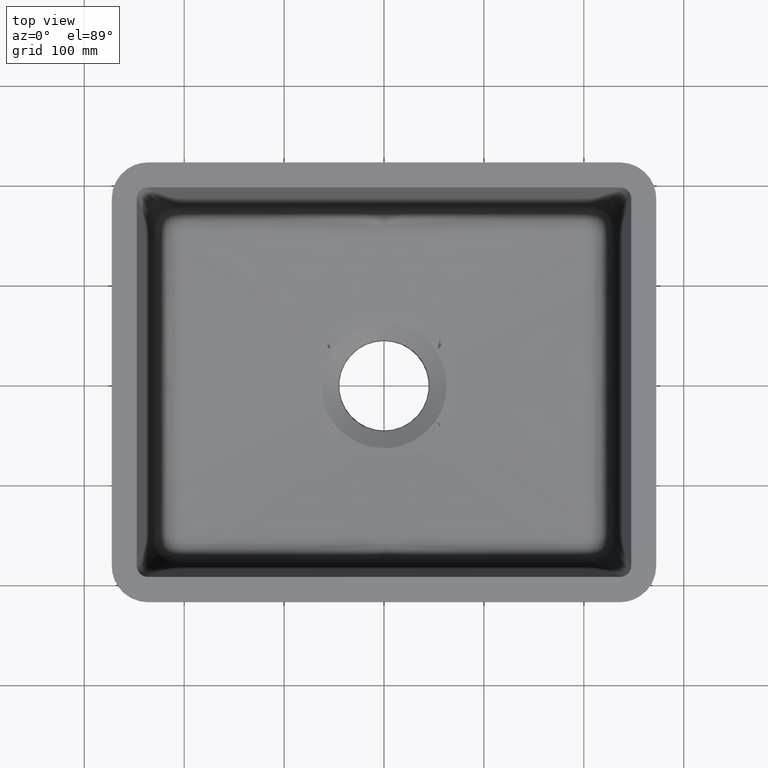
[diagram: clean part render]
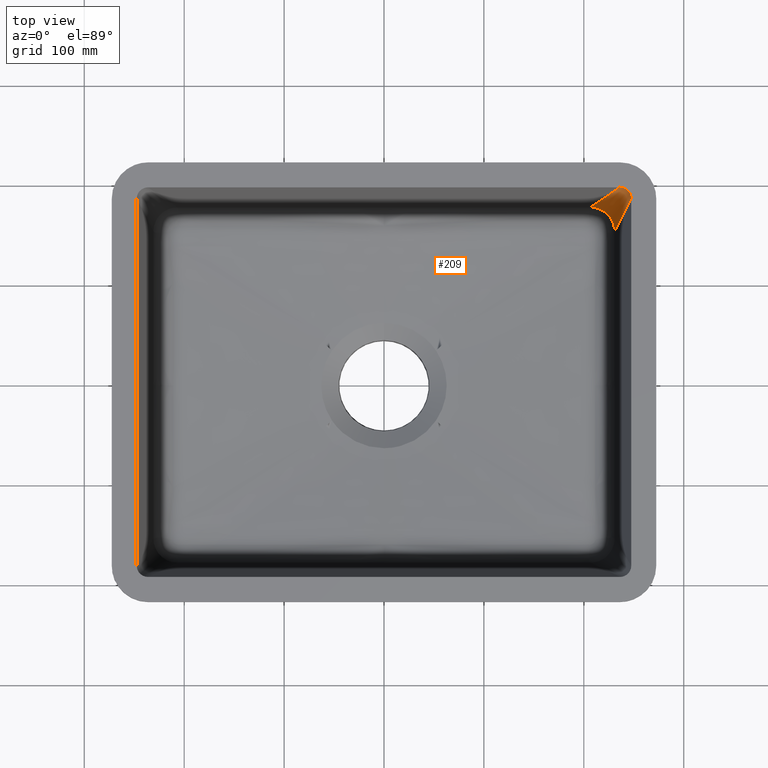
[diagram: same view with one face highlighted and labeled with its STEP entity id]
A machine part, top view. The second image highlights one B-rep face of the part: STEP entity #209.
In plain terms, the highlighted face is a freeform B-spline surface patch.
Its self-contained STEP definition (entity closure, byte-faithful):
#148=B_SPLINE_SURFACE_WITH_KNOTS('',3,3,((#15884,#15885,#15886,#15887,#15888,
#15889,#15890,#15891,#15892,#15893,#15894),(#15895,#15896,#15897,#15898,
#15899,#15900,#15901,#15902,#15903,#15904,#15905),(#15906,#15907,#15908,
#15909,#15910,#15911,#15912,#15913,#15914,#15915,#15916),(#15917,#15918,
#15919,#15920,#15921,#15922,#15923,#15924,#15925,#15926,#15927)),
 .UNSPECIFIED.,.F.,.F.,.F.,(4,4),(4,1,1,1,1,1,1,1,4),(0.,1.),(0.,0.125,
0.25,0.375,0.5,0.625,0.75,0.875,1.),.UNSPECIFIED.);
#209=ADVANCED_FACE('',(#280),#148,.T.);
#280=FACE_OUTER_BOUND('',#350,.T.);
#350=EDGE_LOOP('',(#597,#598,#599,#600));
#597=ORIENTED_EDGE('',*,*,#993,.T.);
#598=ORIENTED_EDGE('',*,*,#978,.T.);
#599=ORIENTED_EDGE('',*,*,#980,.T.);
#600=ORIENTED_EDGE('',*,*,#994,.F.);
#819=VERTEX_POINT('',#13735);
#830=VERTEX_POINT('',#15345);
#831=VERTEX_POINT('',#15629);
#838=VERTEX_POINT('',#15863);
#978=EDGE_CURVE('',#830,#819,#1155,.T.);
#980=EDGE_CURVE('',#819,#831,#1156,.T.);
#993=EDGE_CURVE('',#838,#830,#1166,.T.);
#994=EDGE_CURVE('',#838,#831,#1167,.T.);
#1155=B_SPLINE_CURVE_WITH_KNOTS('',3,(#15496,#15497,#15498,#15499,#15500,
#15501,#15502,#15503,#15504,#15505,#15506),.UNSPECIFIED.,.F.,.F.,(4,1,1,
1,1,1,1,1,4),(0.,0.125,0.25,0.375,0.5,0.625,0.75,0.875,1.),
 .UNSPECIFIED.);
#1156=B_SPLINE_CURVE_WITH_KNOTS('',3,(#15631,#15632,#15633,#15634,#15635,
#15636,#15637,#15638),.UNSPECIFIED.,.F.,.F.,(4,2,2,4),(0.,0.545454545454545,
0.818181818181818,1.),.UNSPECIFIED.);
#1166=B_SPLINE_CURVE_WITH_KNOTS('',3,(#15864,#15865,#15866,#15867,#15868,
#15869,#15870,#15871),.UNSPECIFIED.,.F.,.F.,(4,2,2,4),(0.,0.181818181818182,
0.454545454545455,1.),.UNSPECIFIED.);
#1167=B_SPLINE_CURVE_WITH_KNOTS('',3,(#15873,#15874,#15875,#15876,#15877,
#15878,#15879,#15880,#15881,#15882,#15883),.UNSPECIFIED.,.F.,.F.,(4,1,1,
1,1,1,1,1,4),(0.,0.125,0.25,0.375,0.5,0.625,0.75,0.875,1.),
 .UNSPECIFIED.);
#13735=CARTESIAN_POINT('',(230.884217562772,153.719689496109,-164.708937441336));
#15345=CARTESIAN_POINT('',(206.71433134018,177.920632429342,-164.708937441336));
#15496=CARTESIAN_POINT('',(206.71433134018,177.920632429342,-164.708937441336));
#15497=CARTESIAN_POINT('',(208.297481339096,177.920632429342,-164.708937441336));
#15498=CARTESIAN_POINT('',(211.464245065033,177.613964561811,-164.708937441336));
#15499=CARTESIAN_POINT('',(216.031484255933,176.227713989345,-164.708937441336));
#15500=CARTESIAN_POINT('',(220.236203761262,173.969889042836,-164.708937441336));
#15501=CARTESIAN_POINT('',(223.920045554199,170.936276082644,-164.708937441336));
#15502=CARTESIAN_POINT('',(226.94632060297,167.246456862881,-164.708937441336));
#15503=CARTESIAN_POINT('',(229.197157059585,163.038121042039,-164.708937441336));
#15504=CARTESIAN_POINT('',(230.578584045717,158.469592204631,-164.708937441336));
#15505=CARTESIAN_POINT('',(230.884217562772,155.302839490647,-164.708937441336));
#15506=CARTESIAN_POINT('',(230.884217562772,153.719689496109,-164.708937441336));
#15629=CARTESIAN_POINT('',(247.50000000003,183.726314810026,-2.79941000935757E-12));
#15631=CARTESIAN_POINT('',(190.743294088139,81.2287517382133,-562.617906121354));
#15632=CARTESIAN_POINT('',(203.531729561835,104.323528830982,-435.84869580199));
#15633=CARTESIAN_POINT('',(216.320165035531,127.418305923751,-309.079485482626));
#15634=CARTESIAN_POINT('',(235.502818246075,162.060471562905,-118.92567000358));
#15635=CARTESIAN_POINT('',(241.897035982923,173.607860109289,-55.5410648438978));
#15636=CARTESIAN_POINT('',(252.554065544336,192.853507686596,50.0999437555723));
#15637=CARTESIAN_POINT('',(256.816877368901,200.551766717519,92.3563471953603));
#15638=CARTESIAN_POINT('',(261.079689193466,208.250025748442,134.612750635148));
#15863=CARTESIAN_POINT('',(236.250864642863,194.999999999892,-2.21700204490934E-12));
#15864=CARTESIAN_POINT('',(260.390380408466,208.958566447442,134.612750635148));
#15865=CARTESIAN_POINT('',(252.811068060076,204.575863162545,92.3471106344686));
#15866=CARTESIAN_POINT('',(245.231755711686,200.193159877647,50.0814706337888));
#15867=CARTESIAN_POINT('',(226.283474840712,189.236401665404,-55.5826293679107));
#15868=CARTESIAN_POINT('',(214.914506318127,182.662346738058,-118.98108936893));
#15869=CARTESIAN_POINT('',(180.807600750373,162.940181956019,-309.176469371989));
#15870=CARTESIAN_POINT('',(158.069663705203,149.792072101327,-435.973389374029));
#15871=CARTESIAN_POINT('',(135.331726660033,136.643962246634,-562.770309376068));
#15873=CARTESIAN_POINT('',(236.250864642863,194.999999999892,-1.91328434577069E-14));
#15874=CARTESIAN_POINT('',(236.988026141915,194.999999999892,-2.51183390803541E-14));
#15875=CARTESIAN_POINT('',(238.462542168365,194.854293399741,-3.49461683317661E-14));
#15876=CARTESIAN_POINT('',(240.589185835221,194.21165329397,-4.48586935912335E-14));
#15877=CARTESIAN_POINT('',(242.5449896714,193.15797257756,-5.15422675970472E-14));
#15878=CARTESIAN_POINT('',(244.260964805891,191.744982735131,-5.65971577132043E-14));
#15879=CARTESIAN_POINT('',(245.668122367682,190.024415251305,-6.16236313037017E-14));
#15880=CARTESIAN_POINT('',(246.716270609933,188.065631558189,-6.82219557325362E-14));
#15881=CARTESIAN_POINT('',(247.355217785803,185.937993087888,-7.79923983637049E-14));
#15882=CARTESIAN_POINT('',(247.50000000003,184.463476305809,-8.76876171620381E-14));
#15883=CARTESIAN_POINT('',(247.50000000003,183.726314810027,-9.3597335382926E-14));
#15884=CARTESIAN_POINT('',(236.250864642863,194.999999999892,-1.91328434577069E-14));
#15885=CARTESIAN_POINT('',(236.988026141915,194.999999999892,-2.51183390803541E-14));
#15886=CARTESIAN_POINT('',(238.462542168365,194.854293399741,-3.49461683317661E-14));
#15887=CARTESIAN_POINT('',(240.589185835221,194.21165329397,-4.48586935912335E-14));
#15888=CARTESIAN_POINT('',(242.5449896714,193.15797257756,-5.15422675970472E-14));
#15889=CARTESIAN_POINT('',(244.260964805891,191.744982735131,-5.65971577132043E-14));
#15890=CARTESIAN_POINT('',(245.668122367682,190.024415251305,-6.16236313037017E-14));
#15891=CARTESIAN_POINT('',(246.716270609933,188.065631558189,-6.82219557325362E-14));
#15892=CARTESIAN_POINT('',(247.355217785803,185.937993087888,-7.79923983637049E-14));
#15893=CARTESIAN_POINT('',(247.50000000003,184.463476305809,-8.76876171620381E-14));
#15894=CARTESIAN_POINT('',(247.50000000003,183.726314810027,-9.3597335382926E-14));
#15895=CARTESIAN_POINT('',(226.405353541968,189.306877476375,-54.9029791471149));
#15896=CARTESIAN_POINT('',(227.424512626059,189.306877476375,-54.9029791471151));
#15897=CARTESIAN_POINT('',(229.4631056825,189.107518266139,-54.9029791471156));
#15898=CARTESIAN_POINT('',(232.403281499014,188.217008201892,-54.9029791471163));
#15899=CARTESIAN_POINT('',(235.108724205699,186.761947709349,-54.902979147117));
#15900=CARTESIAN_POINT('',(237.480658369741,184.808747446286,-54.9029791471177));
#15901=CARTESIAN_POINT('',(239.427524427114,182.431759356019,-54.9029791471184));
#15902=CARTESIAN_POINT('',(240.87656733482,179.723124557681,-54.9029791471191));
#15903=CARTESIAN_POINT('',(241.763007612422,176.781855547211,-54.9029791471198));
#15904=CARTESIAN_POINT('',(241.961405854277,174.743265452583,-54.9029791471203));
#15905=CARTESIAN_POINT('',(241.961405854277,173.724106372053,-54.9029791471205));
#15906=CARTESIAN_POINT('',(216.559842441072,183.613754952857,-109.80595829424));
#15907=CARTESIAN_POINT('',(217.8609991102,183.613754952857,-109.80595829424));
#15908=CARTESIAN_POINT('',(220.463669196634,183.360743132536,-109.805958294241));
#15909=CARTESIAN_POINT('',(224.217377162807,182.222363109812,-109.805958294243));
#15910=CARTESIAN_POINT('',(227.672458739997,180.365922841137,-109.805958294244));
#15911=CARTESIAN_POINT('',(230.700351933589,177.87251215744,-109.805958294246));
#15912=CARTESIAN_POINT('',(233.186926486545,174.83910346073,-109.805958294247));
#15913=CARTESIAN_POINT('',(235.036864059705,171.380617557171,-109.805958294248));
#15914=CARTESIAN_POINT('',(236.17079743904,167.625718006532,-109.80595829425));
#15915=CARTESIAN_POINT('',(236.422811708522,165.023054599354,-109.805958294251));
#15916=CARTESIAN_POINT('',(236.422811708522,163.721897934077,-109.805958294251));
#15917=CARTESIAN_POINT('',(206.71433134018,177.920632429342,-164.708937441336));
#15918=CARTESIAN_POINT('',(208.297485594347,177.920632429342,-164.708937441336));
#15919=CARTESIAN_POINT('',(211.464232710772,177.613967998936,-164.708937441336));
#15920=CARTESIAN_POINT('',(216.031472826603,176.227718017737,-164.708937441336));
#15921=CARTESIAN_POINT('',(220.2361932743,173.969897972929,-164.708937441336));
#15922=CARTESIAN_POINT('',(223.920045497441,170.936276868599,-164.708937441336));
#15923=CARTESIAN_POINT('',(226.94632854598,167.246447565448,-164.708937441336));
#15924=CARTESIAN_POINT('',(229.197160784594,163.038110556668,-164.708937441336));
#15925=CARTESIAN_POINT('',(230.578587265662,158.469580465861,-164.708937441336));
#15926=CARTESIAN_POINT('',(230.884217562772,155.302843746134,-164.708937441336));
#15927=CARTESIAN_POINT('',(230.884217562772,153.719689496109,-164.708937441336));